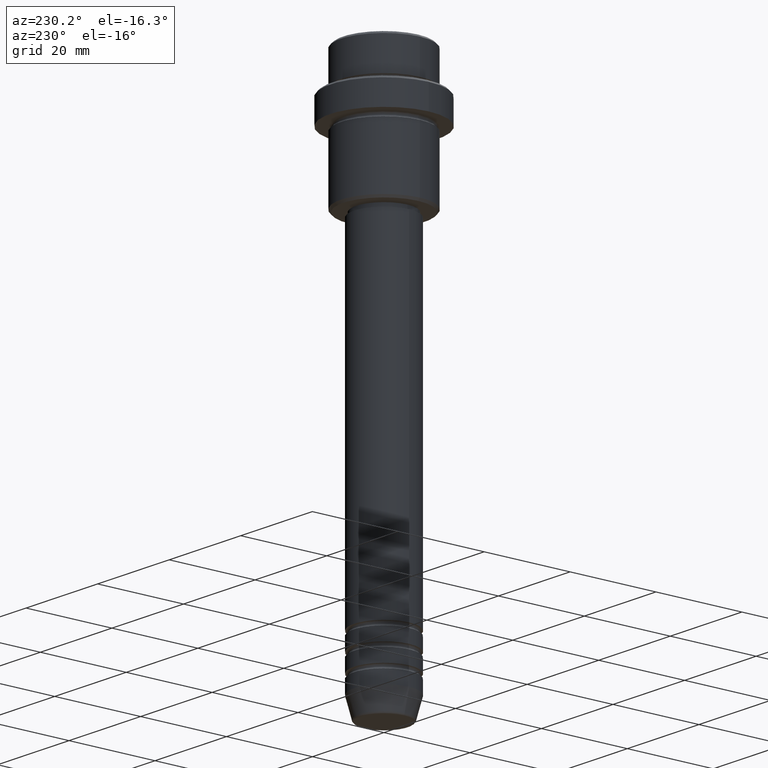
[diagram: clean part render]
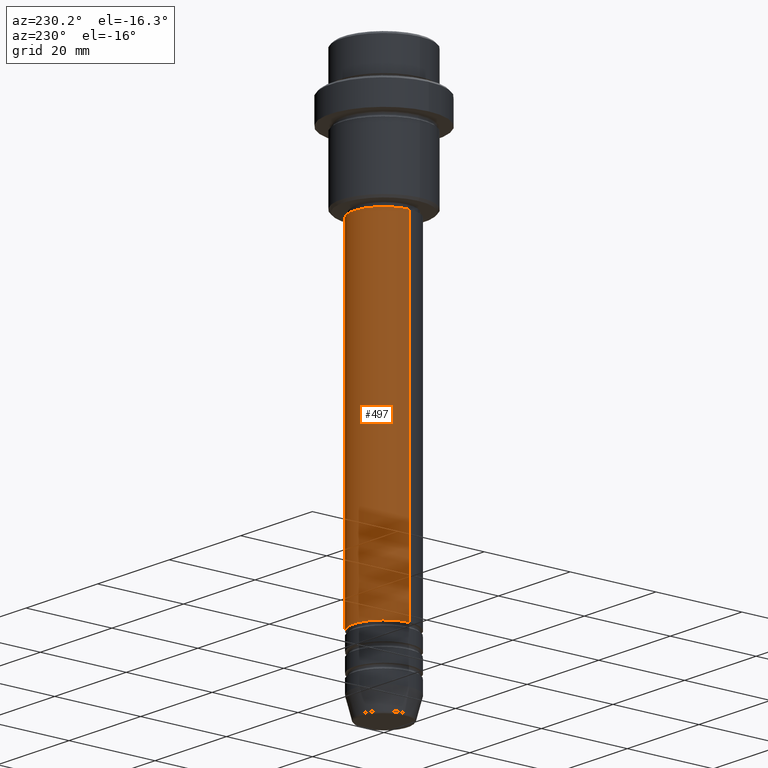
[diagram: same view with one face highlighted and labeled with its STEP entity id]
A machine part, auxiliary view. The second image highlights one B-rep face of the part: STEP entity #497.
In plain terms, the highlighted cylindrical surface (partial cylindrical patch) has radius 7 mm, axis along (-0, -0, 1).
Its self-contained STEP definition (entity closure, byte-faithful):
#22 = VECTOR ( 'NONE', #1244, 1000.000000000000000 ) ;
#38 = DIRECTION ( 'NONE',  ( -0.000000000000000000, -0.000000000000000000, 1.000000000000000000 ) ) ;
#86 = CIRCLE ( 'NONE', #691, 7.000000000000000000 ) ;
#195 = CARTESIAN_POINT ( 'NONE',  ( 0.000000000000000000, 0.000000000000000000, 0.000000000000000000 ) ) ;
#224 = EDGE_CURVE ( 'NONE', #1160, #793, #1005, .T. ) ;
#263 = VERTEX_POINT ( 'NONE', #448 ) ;
#296 = EDGE_CURVE ( 'NONE', #337, #263, #86, .T. ) ;
#309 = DIRECTION ( 'NONE',  ( 1.000000000000000000, 0.000000000000000000, 0.000000000000000000 ) ) ;
#326 = EDGE_CURVE ( 'NONE', #337, #1160, #1245, .T. ) ;
#337 = VERTEX_POINT ( 'NONE', #378 ) ;
#378 = CARTESIAN_POINT ( 'NONE',  ( 7.000000000000000000, 0.000000000000000000, -108.9999999999998721 ) ) ;
#448 = CARTESIAN_POINT ( 'NONE',  ( -7.000000000000000000, 8.572527594031473190E-16, -108.9999999999998721 ) ) ;
#477 = CARTESIAN_POINT ( 'NONE',  ( 7.000000000000000000, 0.000000000000000000, 0.000000000000000000 ) ) ;
#481 = LINE ( 'NONE', #813, #22 ) ;
#497 = ADVANCED_FACE ( 'NONE', ( #734 ), #1164, .T. ) ;
#570 = DIRECTION ( 'NONE',  ( -0.000000000000000000, -0.000000000000000000, 1.000000000000000000 ) ) ;
#577 = CARTESIAN_POINT ( 'NONE',  ( 7.000000000000000000, 0.000000000000000000, -31.99999999999997868 ) ) ;
#691 = AXIS2_PLACEMENT_3D ( 'NONE', #1028, #38, #695 ) ;
#695 = DIRECTION ( 'NONE',  ( 1.000000000000000000, 0.000000000000000000, 0.000000000000000000 ) ) ;
#728 = DIRECTION ( 'NONE',  ( -0.000000000000000000, -0.000000000000000000, 1.000000000000000000 ) ) ;
#734 = FACE_OUTER_BOUND ( 'NONE', #929, .T. ) ;
#756 = EDGE_CURVE ( 'NONE', #263, #793, #481, .T. ) ;
#793 = VERTEX_POINT ( 'NONE', #1117 ) ;
#803 = AXIS2_PLACEMENT_3D ( 'NONE', #893, #570, #309 ) ;
#805 = AXIS2_PLACEMENT_3D ( 'NONE', #195, #728, #1400 ) ;
#813 = CARTESIAN_POINT ( 'NONE',  ( -7.000000000000000000, 8.572527594031473190E-16, 0.000000000000000000 ) ) ;
#854 = ORIENTED_EDGE ( 'NONE', *, *, #756, .T. ) ;
#893 = CARTESIAN_POINT ( 'NONE',  ( 0.000000000000000000, 0.000000000000000000, -31.99999999999997868 ) ) ;
#929 = EDGE_LOOP ( 'NONE', ( #1043, #854, #1407, #1220 ) ) ;
#1005 = CIRCLE ( 'NONE', #803, 7.000000000000000000 ) ;
#1028 = CARTESIAN_POINT ( 'NONE',  ( 0.000000000000000000, 0.000000000000000000, -108.9999999999998721 ) ) ;
#1043 = ORIENTED_EDGE ( 'NONE', *, *, #296, .T. ) ;
#1071 = VECTOR ( 'NONE', #1356, 1000.000000000000000 ) ;
#1117 = CARTESIAN_POINT ( 'NONE',  ( -7.000000000000000000, 8.572527594031473190E-16, -31.99999999999997868 ) ) ;
#1160 = VERTEX_POINT ( 'NONE', #577 ) ;
#1164 = CYLINDRICAL_SURFACE ( 'NONE', #805, 7.000000000000000000 ) ;
#1220 = ORIENTED_EDGE ( 'NONE', *, *, #326, .F. ) ;
#1244 = DIRECTION ( 'NONE',  ( -0.000000000000000000, -0.000000000000000000, 1.000000000000000000 ) ) ;
#1245 = LINE ( 'NONE', #477, #1071 ) ;
#1356 = DIRECTION ( 'NONE',  ( -0.000000000000000000, -0.000000000000000000, 1.000000000000000000 ) ) ;
#1400 = DIRECTION ( 'NONE',  ( 1.000000000000000000, 0.000000000000000000, 0.000000000000000000 ) ) ;
#1407 = ORIENTED_EDGE ( 'NONE', *, *, #224, .F. ) ;